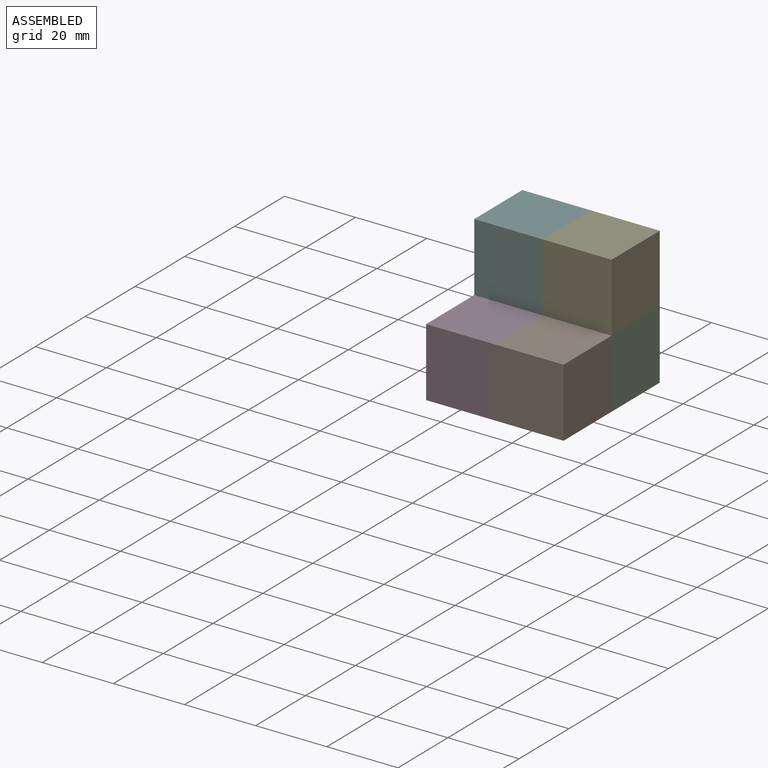
[diagram: assembled view]
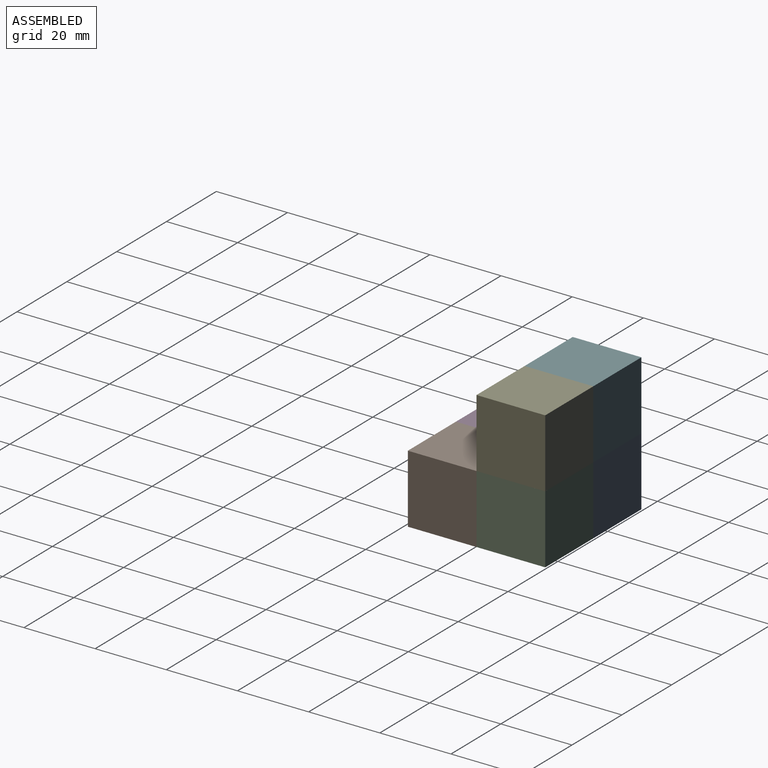
[diagram: assembled view, second angle]
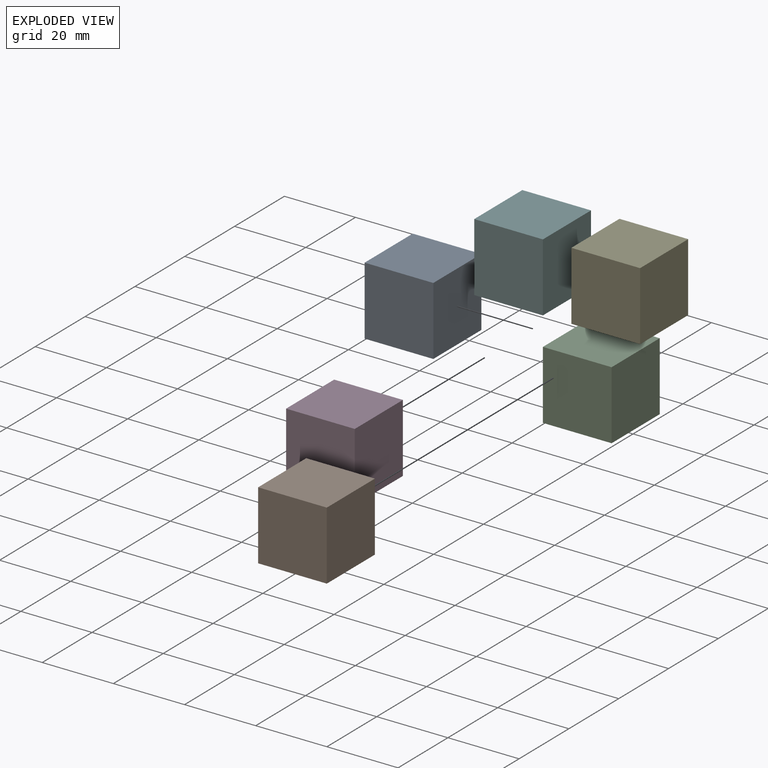
[diagram: exploded view]
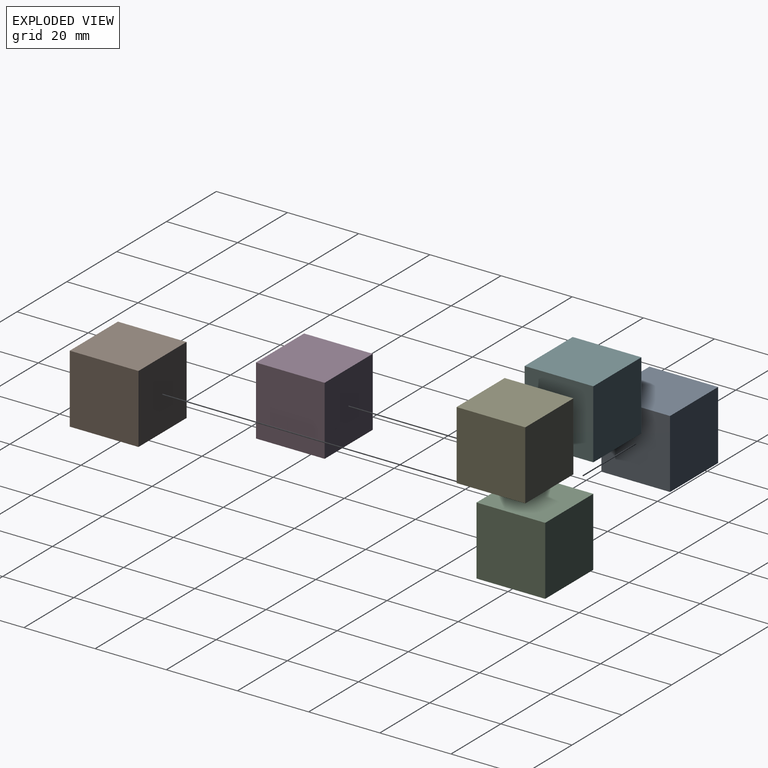
[diagram: exploded view, second angle]
ASSEMBLY  parts=6 mates=4
PART A: 6 faces, bbox 19.3x19.3x19.3 mm
  f0: plane 19.3x19.3mm, normal (0,0,1), area 372.6mm2, adj f1,f3,f4,f5
  f1: plane 19.3x19.3mm, normal (-1,0,0), area 372.6mm2, adj f0,f2,f4,f5
  f2: plane 19.3x19.3mm, normal (0,0,-1), area 372.6mm2, adj f1,f3,f4,f5
  f3: plane 19.3x19.3mm, normal (1,0,0), area 372.6mm2, adj f0,f2,f4,f5
  f4: plane 19.3x19.3mm, normal (0,-1,0), area 372.6mm2, adj f0,f1,f2,f3
  f5: plane 19.3x19.3mm, normal (0,1,0), area 372.6mm2, adj f0,f1,f2,f3
PART B: same geometry as A
PART C: same geometry as A
PART D: same geometry as A
PART E: same geometry as A
PART F: same geometry as A
PLACE A rot(axis=(0,1,0),180deg) t=(11.16,30.55,-16.57)mm
PLACE B t=(30.46,11.25,-16.57)mm
PLACE C t=(30.46,30.55,-16.57)mm
PLACE D t=(11.16,11.25,-16.57)mm
PLACE E t=(30.46,30.55,2.73)mm
PLACE F t=(11.16,30.55,2.73)mm
MATE fastened D.f5 <-> A.f4  axis (0,1,0) through (11.16,11.25,-16.57)mm
MATE fastened C.f0 <-> E.f2  axis (0,0,1) through (30.46,20.9,-6.92)mm
MATE fastened A.f1 <-> C.f1  axis (1,0,0) through (20.81,20.9,-16.57)mm
MATE fastened B.f5 <-> C.f4  axis (0,1,0) through (30.46,11.25,-16.57)mm
